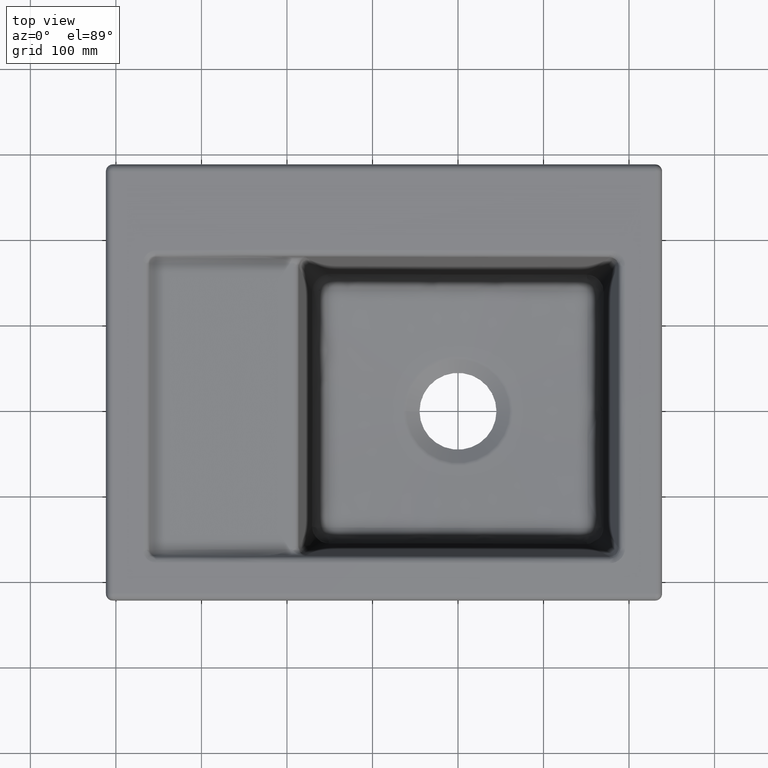
[diagram: clean part render]
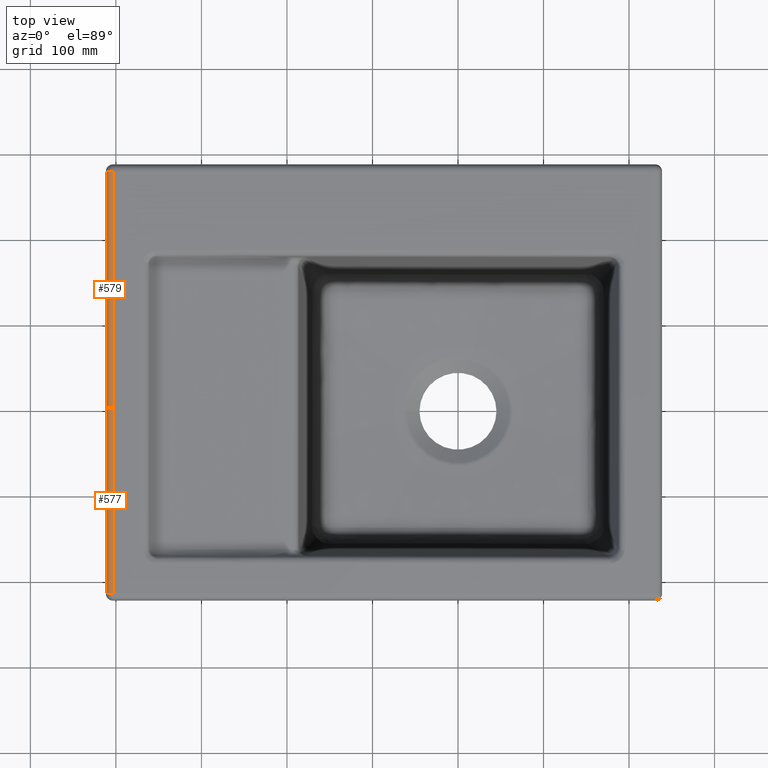
[diagram: same view with one multi-face feature highlighted, each face labeled with its STEP entity id]
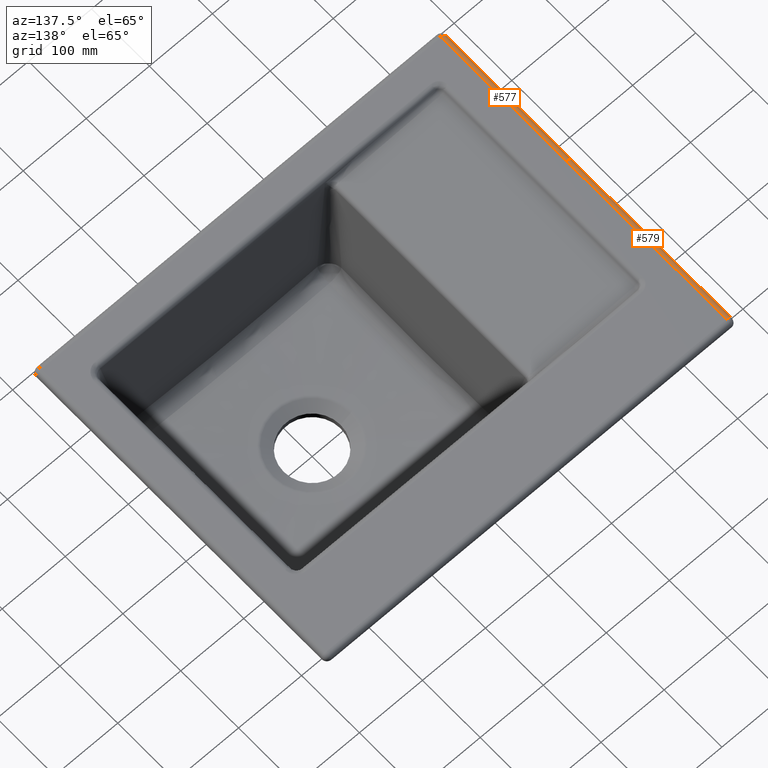
[diagram: same view with one multi-face feature highlighted, each face labeled with its STEP entity id]
A machine part, top view. The highlighted faces form ONE feature: a constant-radius fillet chain: 2 tangent blend faces with common blend radius 8 mm. The faces share edges in the B-rep.
A second angle (auxiliary view) of the same feature is appended — it is thin or edge-on in the first view.
Their STEP definitions:
[1] entity #579 (Cylinder):
#139=CYLINDRICAL_SURFACE('',#4012,7.99999999998335);
#210=CIRCLE('',#4007,8.);
#212=CIRCLE('',#4011,8.);
#579=ADVANCED_FACE('',(#867),#139,.T.);
#867=FACE_OUTER_BOUND('',#1136,.T.);
#1136=EDGE_LOOP('',(#2223,#2224,#2225,#2226));
#2223=ORIENTED_EDGE('',*,*,#3568,.T.);
#2224=ORIENTED_EDGE('',*,*,#3280,.F.);
#2225=ORIENTED_EDGE('',*,*,#3570,.F.);
#2226=ORIENTED_EDGE('',*,*,#3268,.F.);
#2915=VERTEX_POINT('',#6365);
#2916=VERTEX_POINT('',#6367);
#2926=VERTEX_POINT('',#6543);
#2927=VERTEX_POINT('',#6545);
#3268=EDGE_CURVE('',#2915,#2916,#3774,.T.);
#3280=EDGE_CURVE('',#2926,#2927,#3783,.T.);
#3568=EDGE_CURVE('',#2915,#2927,#210,.T.);
#3570=EDGE_CURVE('',#2916,#2926,#212,.T.);
#3774=LINE('',#6366,#3853);
#3783=LINE('',#6544,#3862);
#3853=VECTOR('',#4263,1.);
#3862=VECTOR('',#4276,1.);
#4007=AXIS2_PLACEMENT_3D('',#14788,#4461,#4462);
#4011=AXIS2_PLACEMENT_3D('',#14792,#4469,#4470);
#4012=AXIS2_PLACEMENT_3D('',#14793,#4471,#4472);
#4263=DIRECTION('',(-1.49880108324396E-12,1.,0.));
#4276=DIRECTION('',(1.49880108324406E-12,-1.,0.));
#4461=DIRECTION('',(3.29383187887546E-13,1.,-3.5573462494669E-15));
#4462=DIRECTION('',(-1.,3.29383161099938E-13,0.));
#4469=DIRECTION('',(-1.49383197521515E-12,1.,-6.93889390391241E-15));
#4470=DIRECTION('',(-1.,-1.49186218934005E-12,0.));
#4471=DIRECTION('',(-1.38715603357519E-12,1.,-1.33163401258299E-13));
#4472=DIRECTION('',(-1.,-1.38777878078433E-12,0.));
#6365=CARTESIAN_POINT('',(-411.36291926072,0.015467452235185,212.836227706574));
#6366=CARTESIAN_POINT('',(-411.362919260822,138.414168825868,212.836227706563));
#6367=CARTESIAN_POINT('',(-411.362919261028,276.812870199501,212.836227706563));
#6543=CARTESIAN_POINT('',(-403.406744098082,276.812870199513,220.000000000421));
#6544=CARTESIAN_POINT('',(-403.406744097876,138.414168825873,220.000000000421));
#6545=CARTESIAN_POINT('',(-403.406744097669,0.0154674522326315,220.000000000421));
#14788=CARTESIAN_POINT('',(-403.406744097775,0.0154674522325614,212.000000000421));
#14792=CARTESIAN_POINT('',(-403.406744098082,276.812870199513,212.000000000421));
#14793=CARTESIAN_POINT('',(-403.406744098082,276.812870199512,212.000000000422));
[2] entity #577 (Cylinder):
#137=CYLINDRICAL_SURFACE('',#4008,8.);
#209=CIRCLE('',#4005,8.);
#210=CIRCLE('',#4007,8.);
#577=ADVANCED_FACE('',(#865),#137,.T.);
#865=FACE_OUTER_BOUND('',#1134,.T.);
#1134=EDGE_LOOP('',(#2215,#2216,#2217,#2218));
#2215=ORIENTED_EDGE('',*,*,#3567,.T.);
#2216=ORIENTED_EDGE('',*,*,#3281,.F.);
#2217=ORIENTED_EDGE('',*,*,#3568,.F.);
#2218=ORIENTED_EDGE('',*,*,#3326,.F.);
#2915=VERTEX_POINT('',#6365);
#2923=VERTEX_POINT('',#6538);
#2927=VERTEX_POINT('',#6545);
#2969=VERTEX_POINT('',#7916);
#3281=EDGE_CURVE('',#2927,#2923,#3784,.T.);
#3326=EDGE_CURVE('',#2969,#2915,#3791,.T.);
#3567=EDGE_CURVE('',#2969,#2923,#209,.T.);
#3568=EDGE_CURVE('',#2915,#2927,#210,.T.);
#3784=LINE('',#6546,#3863);
#3791=LINE('',#7917,#3870);
#3863=VECTOR('',#4277,1.);
#3870=VECTOR('',#4300,1.);
#4005=AXIS2_PLACEMENT_3D('',#14786,#4457,#4458);
#4007=AXIS2_PLACEMENT_3D('',#14788,#4461,#4462);
#4008=AXIS2_PLACEMENT_3D('',#14789,#4463,#4464);
#4277=DIRECTION('',(-3.64291929955128E-13,-1.,0.));
#4300=DIRECTION('',(1.87350135405472E-13,1.,0.));
#4457=DIRECTION('',(3.31412975391098E-13,1.,4.59927894924022E-27));
#4458=DIRECTION('',(-1.,3.33066907387547E-13,0.));
#4461=DIRECTION('',(3.29383187887546E-13,1.,-3.5573462494669E-15));
#4462=DIRECTION('',(-1.,3.29383161099938E-13,0.));
#4463=DIRECTION('',(3.29574204088509E-13,1.,-1.73815558490737E-15));
#4464=DIRECTION('',(-1.,3.29574167029544E-13,0.));
#6365=CARTESIAN_POINT('',(-411.36291926072,0.015467452235185,212.836227706574));
#6538=CARTESIAN_POINT('',(-403.406744097847,-216.781935273899,220.000000000421));
#6545=CARTESIAN_POINT('',(-403.406744097669,0.0154674522326315,220.000000000421));
#6546=CARTESIAN_POINT('',(-403.40674409781,-108.383233910833,220.000000000421));
#7916=CARTESIAN_POINT('',(-411.362919260792,-216.781935273899,212.836227706563));
#7917=CARTESIAN_POINT('',(-411.362919260757,-108.383233910831,212.836227706564));
#14786=CARTESIAN_POINT('',(-403.406744097844,-216.781935273899,212.000000000443));
#14788=CARTESIAN_POINT('',(-403.406744097775,0.0154674522325614,212.000000000421));
#14789=CARTESIAN_POINT('',(-403.406744097775,0.0154674522326037,212.000000000422));